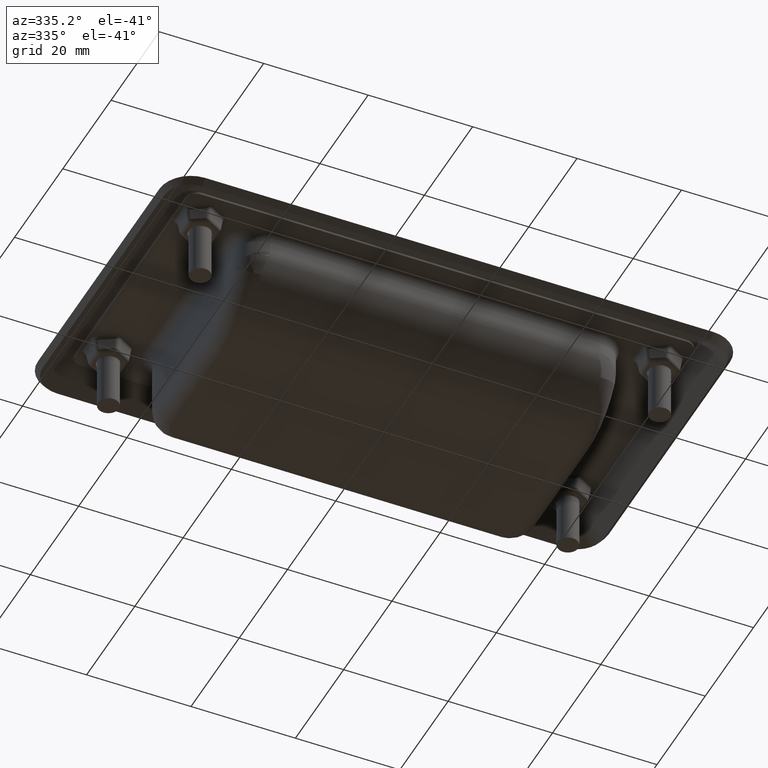
[diagram: clean part render]
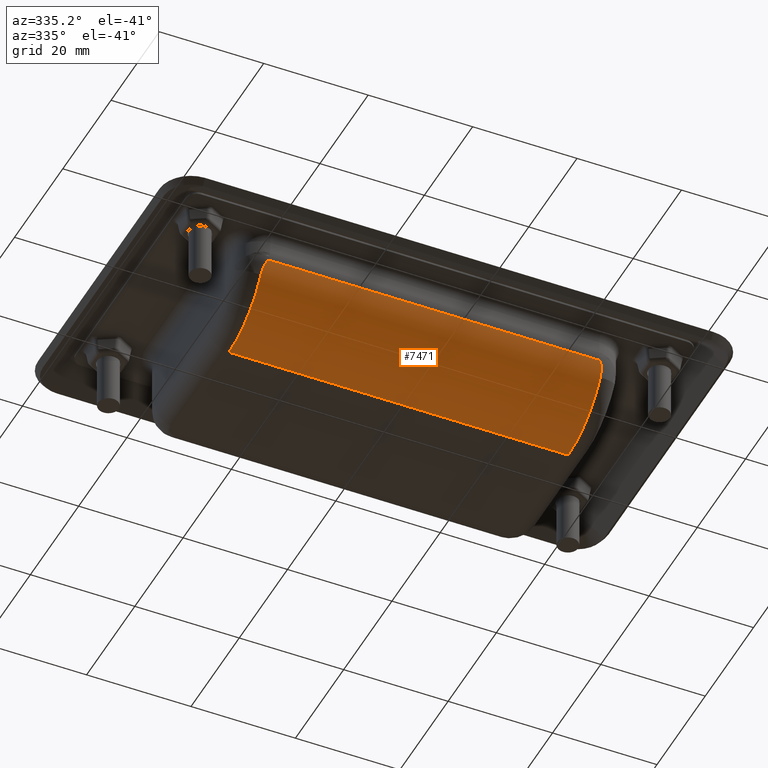
[diagram: same view with one face highlighted and labeled with its STEP entity id]
A machine part, auxiliary view. The second image highlights one B-rep face of the part: STEP entity #7471.
In plain terms, the highlighted cylindrical surface (partial cylindrical patch) has radius 15.864 mm, axis along (-1, 0, 0).
Its self-contained STEP definition (entity closure, byte-faithful):
#497=LINE('',#14143,#1031);
#502=LINE('',#14246,#1036);
#1031=VECTOR('',#9458,63.);
#1036=VECTOR('',#9485,65.);
#1405=B_SPLINE_CURVE_WITH_KNOTS('',3,(#14119,#14120,#14121,#14122,#14123,
#14124,#14125,#14126,#14127,#14128,#14129,#14130,#14131,#14132,#14133,#14134,
#14135,#14136,#14137),.UNSPECIFIED.,.F.,.F.,(4,3,3,3,3,3,4),(9.87219657432482E-17,
0.018312695836453,0.109876175018717,0.183126958364529,0.219752350037434,
0.238065045873887,0.25637774171034),.UNSPECIFIED.);
#1407=B_SPLINE_CURVE_WITH_KNOTS('',3,(#14201,#14202,#14203,#14204,#14205,
#14206,#14207,#14208,#14209,#14210,#14211,#14212,#14213,#14214,#14215,#14216,
#14217,#14218,#14219),.UNSPECIFIED.,.F.,.F.,(4,3,3,3,3,3,4),(2.60780464535868E-33,
0.0183104851374205,0.0366209702748409,0.0732419405496818,0.109862910824523,
0.183104851374205,0.256346791923886),.UNSPECIFIED.);
#1975=FACE_OUTER_BOUND('',#2483,.T.);
#2483=EDGE_LOOP('',(#6016,#6017,#6018,#6019,#6020,#6021));
#2890=CIRCLE('',#8105,15.8640186915888);
#2896=CIRCLE('',#8113,15.8640186915888);
#3439=VERTEX_POINT('',#14045);
#3440=VERTEX_POINT('',#14049);
#3441=VERTEX_POINT('',#14097);
#3443=VERTEX_POINT('',#14139);
#3445=VERTEX_POINT('',#14189);
#3447=VERTEX_POINT('',#14221);
#4288=EDGE_CURVE('',#3439,#3440,#2890,.T.);
#4291=EDGE_CURVE('',#3440,#3441,#1405,.T.);
#4294=EDGE_CURVE('',#3441,#3443,#497,.T.);
#4297=EDGE_CURVE('',#3443,#3445,#1407,.T.);
#4300=EDGE_CURVE('',#3445,#3447,#2896,.T.);
#4307=EDGE_CURVE('',#3447,#3439,#502,.T.);
#6016=ORIENTED_EDGE('',*,*,#4288,.F.);
#6017=ORIENTED_EDGE('',*,*,#4307,.F.);
#6018=ORIENTED_EDGE('',*,*,#4300,.F.);
#6019=ORIENTED_EDGE('',*,*,#4297,.F.);
#6020=ORIENTED_EDGE('',*,*,#4294,.F.);
#6021=ORIENTED_EDGE('',*,*,#4291,.F.);
#7119=CYLINDRICAL_SURFACE('',#8151,15.8640186915888);
#7471=ADVANCED_FACE('',(#1975),#7119,.T.);
#8105=AXIS2_PLACEMENT_3D('',#14051,#9449,#9450);
#8113=AXIS2_PLACEMENT_3D('',#14225,#9467,#9468);
#8151=AXIS2_PLACEMENT_3D('',#14449,#9559,#9560);
#9449=DIRECTION('center_axis',(1.,0.,0.));
#9450=DIRECTION('ref_axis',(0.,0.334435986394752,-0.942418469154849));
#9458=DIRECTION('',(-1.,0.,0.));
#9467=DIRECTION('center_axis',(-1.,0.,0.));
#9468=DIRECTION('ref_axis',(0.,0.334435986394752,-0.942418469154849));
#9485=DIRECTION('',(1.,0.,0.));
#9559=DIRECTION('center_axis',(1.,0.,0.));
#9560=DIRECTION('ref_axis',(0.,3.7470027081099E-16,-1.));
#14045=CARTESIAN_POINT('',(32.5,6.,-61.2));
#14049=CARTESIAN_POINT('',(32.5,19.3715388554098,-53.8723176235609));
#14051=CARTESIAN_POINT('Origin',(32.5,5.99999999999999,-45.3359813084112));
#14097=CARTESIAN_POINT('',(31.5,20.7086927409508,-51.2791662205084));
#14119=CARTESIAN_POINT('Ctrl Pts',(32.5,19.3715388554098,-53.8723176235609));
#14120=CARTESIAN_POINT('Ctrl Pts',(32.5,19.4154597039746,-53.8035188659365));
#14121=CARTESIAN_POINT('Ctrl Pts',(32.4983200286629,19.4588891308564,-53.734317003443));
#14122=CARTESIAN_POINT('Ctrl Pts',(32.495175368361,19.5017033535506,-53.6649125483602));
#14123=CARTESIAN_POINT('Ctrl Pts',(32.4794520668518,19.715774467022,-53.3178902729461));
#14124=CARTESIAN_POINT('Ctrl Pts',(32.4271115412236,19.914302554052,-52.9657042722377));
#14125=CARTESIAN_POINT('Ctrl Pts',(32.3411777253908,20.0940796497144,-52.6177398786047));
#14126=CARTESIAN_POINT('Ctrl Pts',(32.2724306727245,20.2379013262442,-52.3393683636982));
#14127=CARTESIAN_POINT('Ctrl Pts',(32.1821839143271,20.3695496767075,-52.0636129062798));
#14128=CARTESIAN_POINT('Ctrl Pts',(32.0548067705577,20.4834270513803,-51.8088037140101));
#14129=CARTESIAN_POINT('Ctrl Pts',(31.991118198673,20.5403657387167,-51.6813991178753));
#14130=CARTESIAN_POINT('Ctrl Pts',(31.9181470304452,20.5928199368029,-51.5592111426071));
#14131=CARTESIAN_POINT('Ctrl Pts',(31.8272285860796,20.6349112218594,-51.4586002395038));
#14132=CARTESIAN_POINT('Ctrl Pts',(31.7817693638968,20.6559568643876,-51.4082947879521));
#14133=CARTESIAN_POINT('Ctrl Pts',(31.7318233226796,20.6744224387796,-51.3633879720837));
#14134=CARTESIAN_POINT('Ctrl Pts',(31.676641561569,20.6876002529525,-51.3311033135541));
#14135=CARTESIAN_POINT('Ctrl Pts',(31.6214598004585,20.7007780671254,-51.2988186550245));
#14136=CARTESIAN_POINT('Ctrl Pts',(31.5610423194548,20.7086927409508,-51.2791662205084));
#14137=CARTESIAN_POINT('Ctrl Pts',(31.5,20.7086927409508,-51.2791662205084));
#14139=CARTESIAN_POINT('',(-31.5,20.7086927409508,-51.2791662205084));
#14143=CARTESIAN_POINT('',(0.,20.7086927409508,-51.2791662205084));
#14189=CARTESIAN_POINT('',(-32.5,19.3715388554098,-53.8723176235609));
#14201=CARTESIAN_POINT('Ctrl Pts',(-31.5,20.7086927409508,-51.2791662205084));
#14202=CARTESIAN_POINT('Ctrl Pts',(-31.5610349504581,20.7086927409508,-51.2791662205084));
#14203=CARTESIAN_POINT('Ctrl Pts',(-31.6215101528484,20.7007893621131,-51.2987909079661));
#14204=CARTESIAN_POINT('Ctrl Pts',(-31.676676020907,20.6876051344846,-51.3310913541518));
#14205=CARTESIAN_POINT('Ctrl Pts',(-31.7318418889656,20.6744209068561,-51.3633918003375));
#14206=CARTESIAN_POINT('Ctrl Pts',(-31.7816984226926,20.6559307602677,-51.4083577153063));
#14207=CARTESIAN_POINT('Ctrl Pts',(-31.8271566504363,20.6348882123694,-51.4586552388546));
#14208=CARTESIAN_POINT('Ctrl Pts',(-31.9180731059238,20.5928031165728,-51.5592502859512));
#14209=CARTESIAN_POINT('Ctrl Pts',(-31.9913963374785,20.5404724923647,-51.6811577707736));
#14210=CARTESIAN_POINT('Ctrl Pts',(-32.0549492779499,20.483473874984,-51.8086989416573));
#14211=CARTESIAN_POINT('Ctrl Pts',(-32.1185022184212,20.4264752576033,-51.936240112541));
#14212=CARTESIAN_POINT('Ctrl Pts',(-32.1722848678093,20.3648910187251,-52.0694514630436));
#14213=CARTESIAN_POINT('Ctrl Pts',(-32.2194107122533,20.2997610970633,-52.2050366738887));
#14214=CARTESIAN_POINT('Ctrl Pts',(-32.3136624011414,20.1695012537395,-52.4762070955789));
#14215=CARTESIAN_POINT('Ctrl Pts',(-32.3812868702533,20.0250004802179,-52.7568428776338));
#14216=CARTESIAN_POINT('Ctrl Pts',(-32.427871269968,19.8694040027712,-53.0370670536158));
#14217=CARTESIAN_POINT('Ctrl Pts',(-32.4744556696827,19.7138075253244,-53.3172912295978));
#14218=CARTESIAN_POINT('Ctrl Pts',(-32.5,19.5472010412619,-53.5971558144627));
#14219=CARTESIAN_POINT('Ctrl Pts',(-32.5,19.3715388554098,-53.8723176235609));
#14221=CARTESIAN_POINT('',(-32.5,6.,-61.2));
#14225=CARTESIAN_POINT('Origin',(-32.5,5.99999999999999,-45.3359813084112));
#14246=CARTESIAN_POINT('',(0.,6.,-61.2));
#14449=CARTESIAN_POINT('Origin',(0.,5.99999999999999,-45.3359813084112));